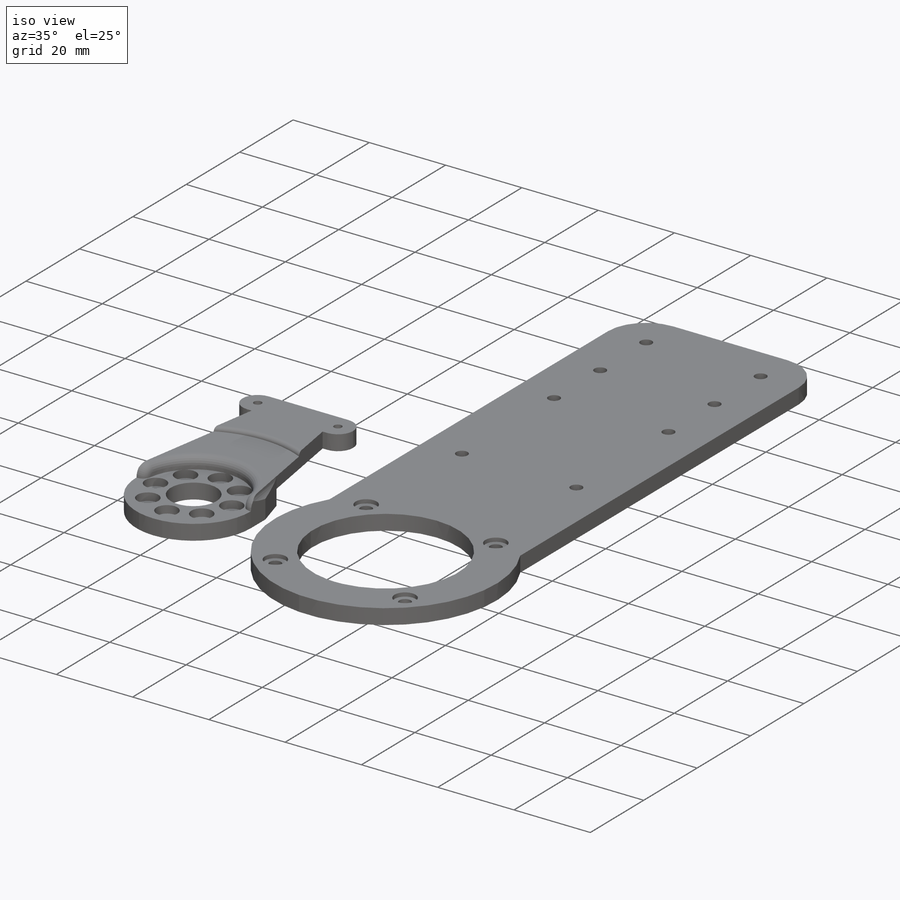
[diagram: iso view]
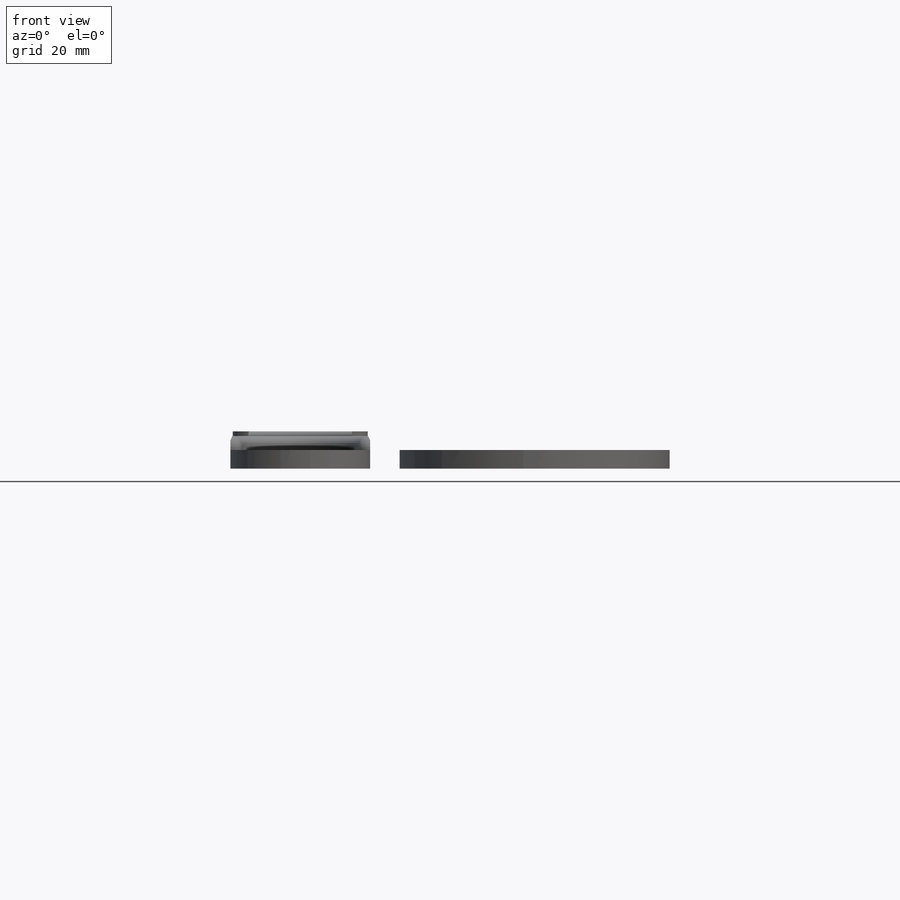
[diagram: front view]
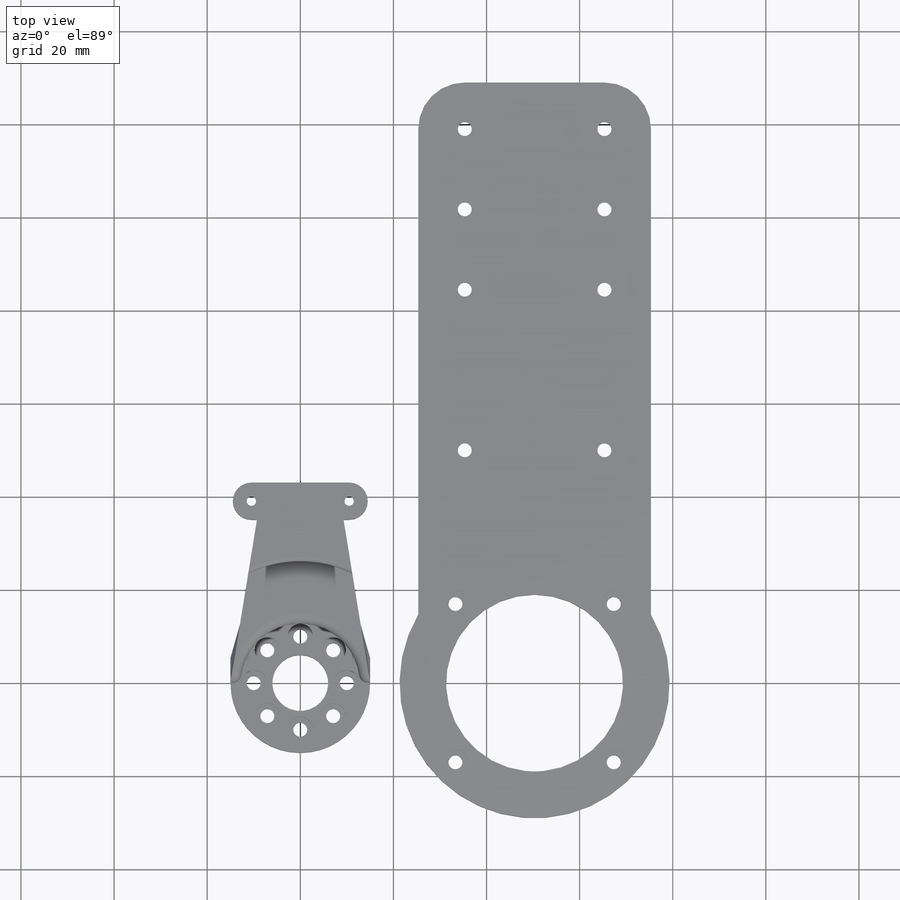
[diagram: top view]
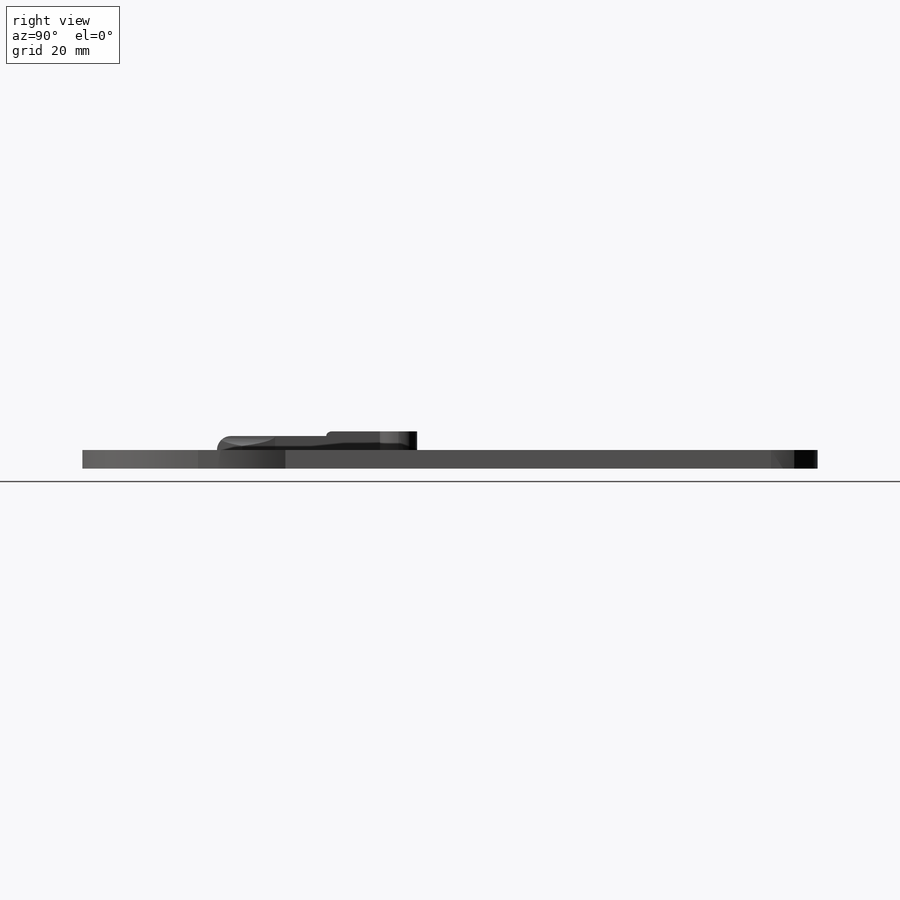
[diagram: right view]
SOLIDWORKS PART (.sldprt)
format: sldprt  version: not decoded by parser v0  size: 827,392 bytes
history: native  units: mm
features: sketch x21, extrude x11, cut_extrude x10, fillet x8, plane x3, pattern_circular x3, material x1 (+9 scaffold rows collapsed)
feature tree (66):
  scaffold x9  (default folders/planes/origin — collapsed)
  material  "材质 <未指定>"
  plane  "前视基准面"
  plane  "上视基准面"
  plane  "右视基准面"
  sketch  "草图1"  dims[D1=30.0mm D2=12.0mm]
  extrude  "凸台-拉伸1"  Depth=2mm
  sketch  "草图2"  dims[D2=3.0mm D1=10.0mm]
  cut_extrude  "切除-拉伸1"  Depth=2mm
  pattern_circular  "阵列(圆周)1"  Count=8 Angle=360deg
  sketch  "草图3"  dims[D1=5.5mm]
  extrude  "凸台-拉伸2"  Depth=2mm
  sketch  "草图4"  dims[D1=5.5mm]
  cut_extrude  "切除-拉伸2"  Depth=2mm
  pattern_circular  "阵列(圆周)2"  Count=8 Angle=360deg
  sketch  "草图5"
  cut_extrude  "切除-拉伸3"  Depth=2mm
  sketch  "草图8"  dims[D1=35.0mm D2=8.0mm D3=8.0mm D4=8.0mm]
  sketch  "草图9"  dims[D1=18.0mm]
  extrude  "凸台-拉伸3"  Depth=4mm
  extrude  "凸台-拉伸4"  Depth=3mm
  fillet  "圆角1"  Radius=3mm
  fillet  "圆角2"  Radius=2mm
  fillet  "圆角4"  Radius=3mm
  sketch  "草图11"  dims[D1=26.0mm]
  extrude  "凸台-拉伸5"  Depth=1mm
  sketch  "草图12"  dims[c1.D1=35.0mm c1.D2=4.1mm c1.D3=8.0mm c2.D1=5.0mm c2.D4=5.0mm c2.D5=4.1mm c2.D6=4.1mm c2.D7=35.0mm c2.D8=8.0mm]
  cut_extrude  "切除-拉伸4"  Depth=2mm
  sketch  "草图13"  dims[D1=2.0mm D2=2.0mm D3=2.0mm]
  cut_extrude  "切除-拉伸5"  Depth=2mm
  fillet  "圆角6"  Radius=1mm
  fillet  "圆角7"  Radius=1mm
  sketch  "草图14"  dims[D1=43.0mm]
  extrude  "凸台-拉伸6"  Depth=4mm
  sketch  "草图15"  dims[D1=39.0mm D2=12.5mm D3=12.5mm D4=4.0mm]
  extrude  "凸台-拉伸7"  Depth=4mm
  sketch  "草图16"  dims[c1.D4=2.0mm c1.D5=2.0mm c1.D1=39.0mm c1.D2=10.5mm c1.D3=10.5mm c2.D4=10.5mm c2.D6=8.0mm]
  cut_extrude  "切除-拉伸6"  Depth=4mm
  sketch  "草图17"  dims[D1=4.1mm D2=4.1mm]
  cut_extrude  "切除-拉伸7"  Depth=2.5mm
  sketch  "草图18"  dims[D1=8.0mm]
  extrude  "凸台-拉伸8"  Depth=2mm
  sketch  "草图19"  dims[D1=8.0mm]
  extrude  "凸台-拉伸9"  Depth=2mm
  fillet  "圆角9"  Radius=1mm
  fillet  "圆角10"  Radius=4mm
  sketch  "草图20"  dims[c1.D1=38.0mm c1.D2=38.0mm c1.D9=3.0mm c1.D10=3.0mm c1.D11=3.0mm c1.D12=3.0mm c2.D2=10.0mm c2.D3=~50.327796mm c3.D3=135.0deg c3.D4=~50.327796mm c4.D4=135.0deg c4.D5=34.0mm c4.D6=34.0mm c5.D6=45.0deg c5.D7=17.0mm c6.D7=90.0deg c7.D7=34.0mm c7.D8=~24.041631mm c8.D8=45.0deg c9.D8=34.0mm]
  extrude  "凸台-拉伸11"  Depth=4mm
  sketch  "草图23"  dims[D1=5.5mm]
  cut_extrude  "切除-拉伸9"  Depth=1mm
  pattern_circular  "阵列(圆周)5"  Count=4 Angle=360deg
  sketch  "草图24"  dims[D7=3.0mm D8=3.0mm D9=3.0mm D10=3.0mm D1=45.0mm D2=5.0mm D3=15.0mm D4=15.0mm D5=69.0mm D6=10.0mm D11=25.0mm D12=25.0mm]
  extrude  "凸台-拉伸12"  Depth=4mm
  sketch  "草图25"  dims[D1=3.0mm D2=3.0mm D3=3.0mm D4=3.0mm D5=34.5mm]
  cut_extrude  "切除-拉伸10"  Depth=4mm
  sketch  "草图27"  dims[D1=5.6mm D2=5.6mm D3=5.6mm D4=5.6mm D5=5.6mm D6=5.6mm D7=5.6mm D8=5.6mm]
  cut_extrude  "切除-拉伸11"  Depth=2mm
  fillet  "圆角11"  Radius=10mm
decode coverage: 52 of 53 modeling features carry decoded parameters
note: ~ marks probable driven/reference dimensions
note: suppression state not decoded; provenance and decode notes live in map.json
